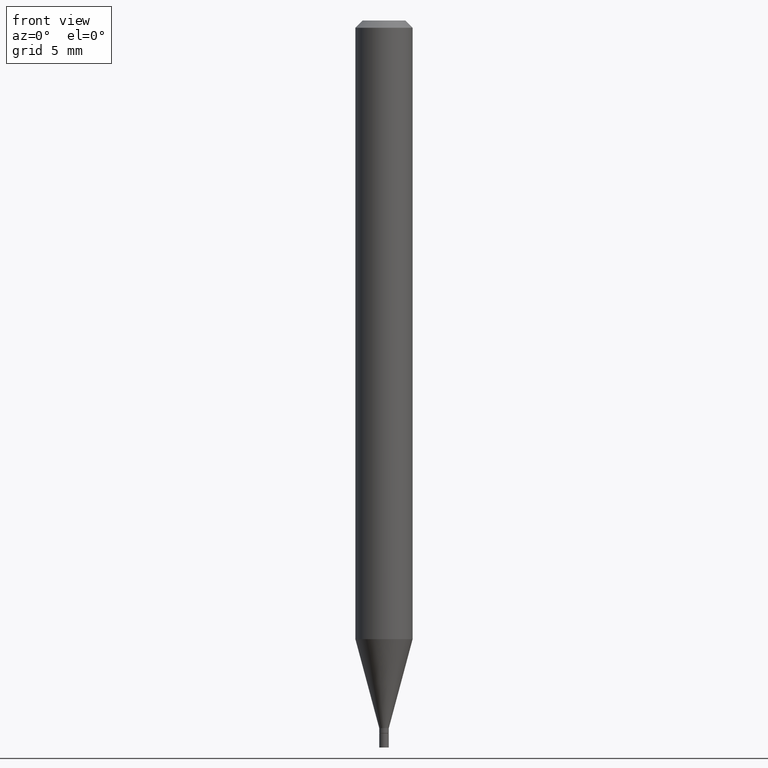
[diagram: clean part render]
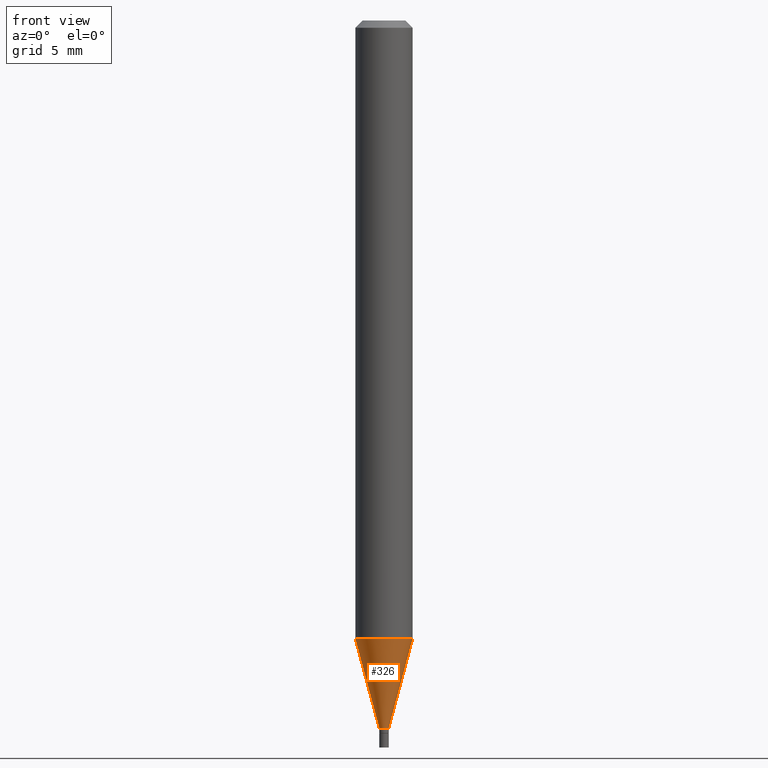
[diagram: same view with one face highlighted and labeled with its STEP entity id]
A machine part, front view. The second image highlights one B-rep face of the part: STEP entity #326.
In plain terms, the highlighted conical surface has half-angle 15 deg.
Its self-contained STEP definition (entity closure, byte-faithful):
#16 = DIRECTION ( 'NONE',  ( -2.445468806185136597E-29, 3.491481338843145583E-15, 1.000000000000000000 ) ) ;
#21 = CARTESIAN_POINT ( 'NONE',  ( 3.570384457030299835E-29, -5.097562754710993158E-15, -1.459999999999999964 ) ) ;
#26 = CONICAL_SURFACE ( 'NONE', #84, 0.009849999999999924788, 0.2617993877991505181 ) ;
#36 = DIRECTION ( 'NONE',  ( 1.000000000000000000, -6.982962677686273021E-15, 0.000000000000000000 ) ) ;
#43 = EDGE_CURVE ( 'NONE', #157, #329, #170, .T. ) ;
#68 = DIRECTION ( 'NONE',  ( 0.2588190451025217942, 1.565188264969618812E-15, 0.9659258262890679791 ) ) ;
#78 = LINE ( 'NONE', #174, #87 ) ;
#84 = AXIS2_PLACEMENT_3D ( 'NONE', #457, #382, #379 ) ;
#87 = VECTOR ( 'NONE', #355, 39.37007874015748143 ) ;
#93 = CIRCLE ( 'NONE', #422, 0.05904999999999999832 ) ;
#98 = EDGE_CURVE ( 'NONE', #191, #432, #78, .T. ) ;
#122 = ORIENTED_EDGE ( 'NONE', *, *, #98, .F. ) ;
#127 = DIRECTION ( 'NONE',  ( 1.000000000000000000, -6.982962677686282488E-15, 0.000000000000000000 ) ) ;
#128 = FACE_OUTER_BOUND ( 'NONE', #445, .T. ) ;
#157 = VERTEX_POINT ( 'NONE', #443 ) ;
#170 = LINE ( 'NONE', #463, #234 ) ;
#173 = ORIENTED_EDGE ( 'NONE', *, *, #305, .T. ) ;
#174 = CARTESIAN_POINT ( 'NONE',  ( -0.009849999999999924788, -5.027574295238623898E-15, -1.459999999999999964 ) ) ;
#188 = ORIENTED_EDGE ( 'NONE', *, *, #43, .T. ) ;
#191 = VERTEX_POINT ( 'NONE', #269 ) ;
#234 = VECTOR ( 'NONE', #68, 39.37007874015748143 ) ;
#244 = ORIENTED_EDGE ( 'NONE', *, *, #441, .F. ) ;
#245 = CIRCLE ( 'NONE', #248, 0.009849999999999924788 ) ;
#248 = AXIS2_PLACEMENT_3D ( 'NONE', #21, #16, #127 ) ;
#250 = DIRECTION ( 'NONE',  ( -2.445468806185136597E-29, 3.491481338843145583E-15, 1.000000000000000000 ) ) ;
#269 = CARTESIAN_POINT ( 'NONE',  ( -0.009849999999999924788, -4.532233292785705389E-15, -1.459999999999999964 ) ) ;
#270 = CARTESIAN_POINT ( 'NONE',  ( 0.05904999999999999138, -4.868811721916501294E-15, -1.276383100267611814 ) ) ;
#305 = EDGE_CURVE ( 'NONE', #191, #157, #245, .T. ) ;
#326 = ADVANCED_FACE ( 'NONE', ( #128 ), #26, .T. ) ;
#329 = VERTEX_POINT ( 'NONE', #270 ) ;
#355 = DIRECTION ( 'NONE',  ( -0.2588190451025217942, 5.211531920934552619E-15, 0.9659258262890679791 ) ) ;
#379 = DIRECTION ( 'NONE',  ( 1.000000000000000000, -6.982962677686282488E-15, 0.000000000000000000 ) ) ;
#382 = DIRECTION ( 'NONE',  ( -2.445468806185136597E-29, 3.491481338843145583E-15, 1.000000000000000000 ) ) ;
#398 = CARTESIAN_POINT ( 'NONE',  ( 3.121355056446320430E-29, -4.456467775799125585E-15, -1.276383100267611814 ) ) ;
#422 = AXIS2_PLACEMENT_3D ( 'NONE', #398, #250, #36 ) ;
#425 = CARTESIAN_POINT ( 'NONE',  ( -0.05904999999999999138, -4.036892290332787669E-15, -1.276383100267611814 ) ) ;
#432 = VERTEX_POINT ( 'NONE', #425 ) ;
#441 = EDGE_CURVE ( 'NONE', #432, #329, #93, .T. ) ;
#443 = CARTESIAN_POINT ( 'NONE',  ( 0.009849999999999924788, -5.166344937086201976E-15, -1.459999999999999964 ) ) ;
#445 = EDGE_LOOP ( 'NONE', ( #122, #173, #188, #244 ) ) ;
#457 = CARTESIAN_POINT ( 'NONE',  ( 3.570384457030299835E-29, -5.097562754710993158E-15, -1.459999999999999964 ) ) ;
#463 = CARTESIAN_POINT ( 'NONE',  ( 0.009849999999999924788, -5.166344937086201976E-15, -1.459999999999999964 ) ) ;